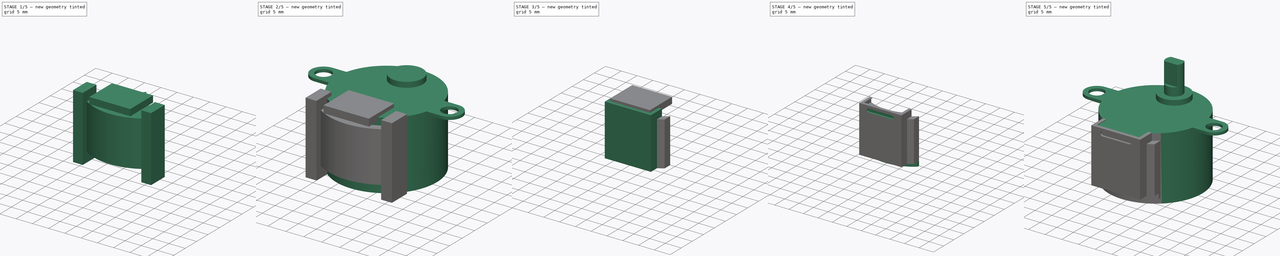
[diagram: build sequence overview — one tinted view per stage of 5, left to right]
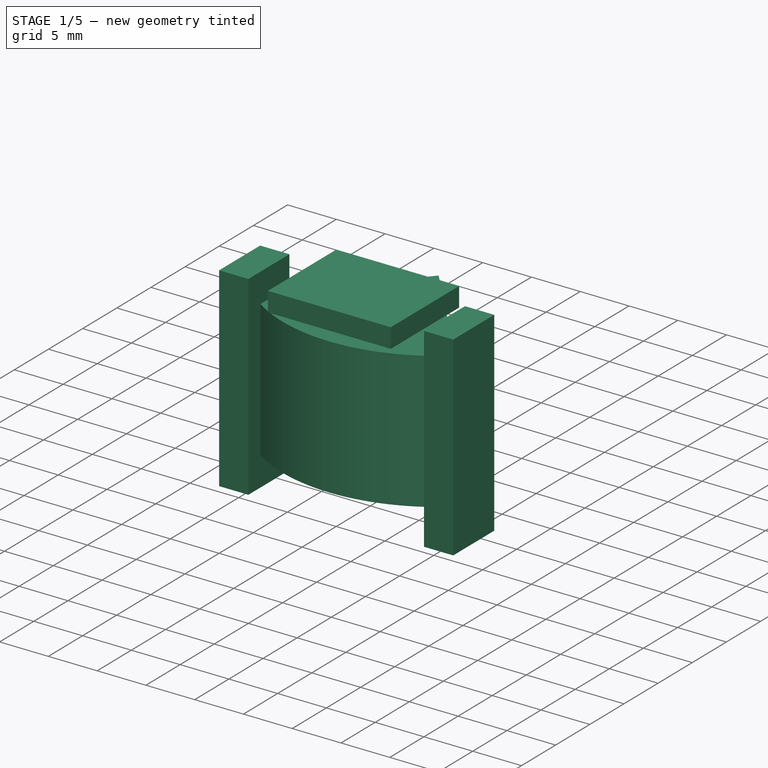
[diagram: stage 1 of 5 — iso view after this stage's code; geometry added in this stage tinted green]
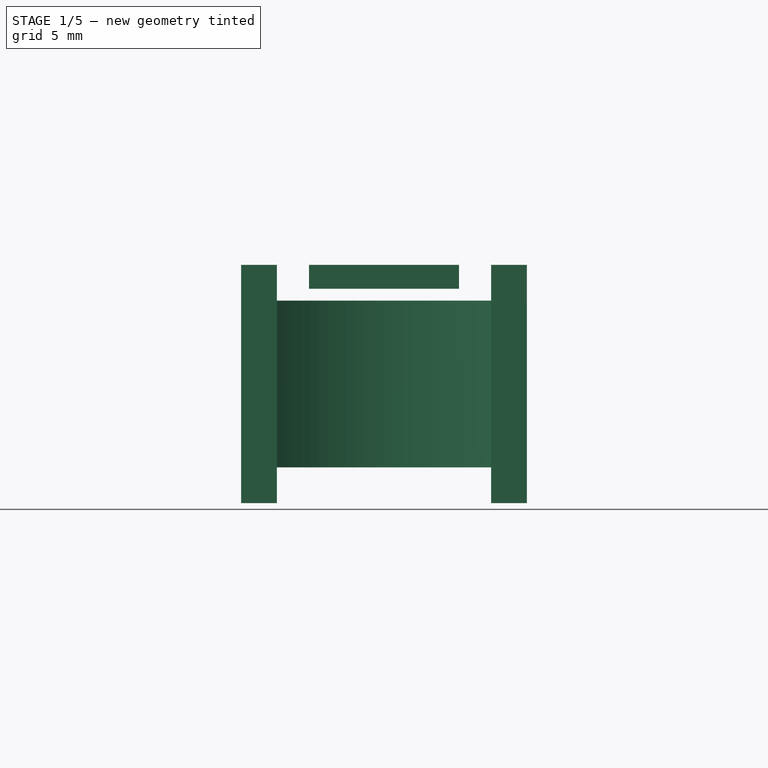
[diagram: stage 1 of 5 — front view after this stage's code; geometry added in this stage tinted green]
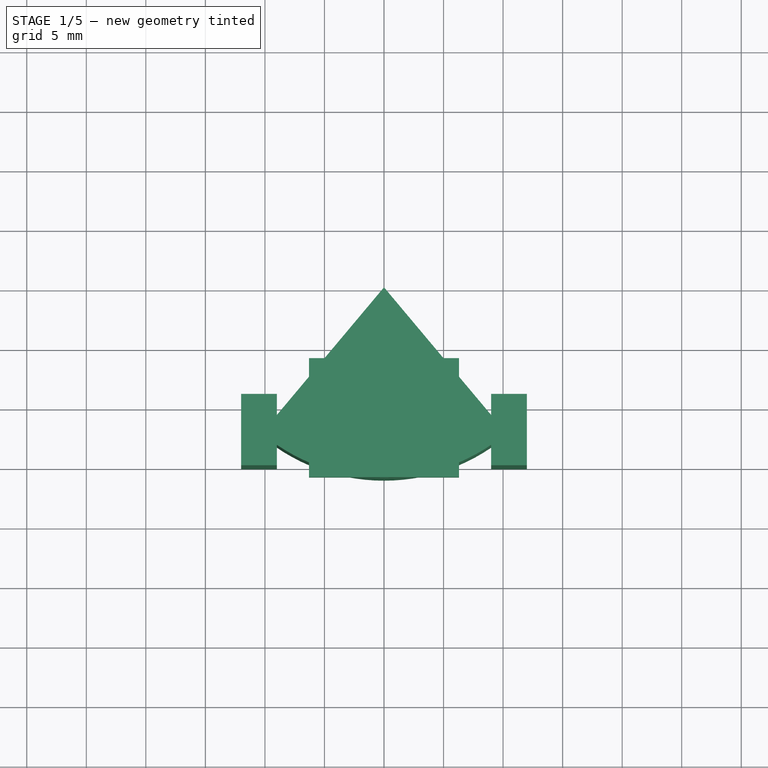
[diagram: stage 1 of 5 — top view after this stage's code; geometry added in this stage tinted green]
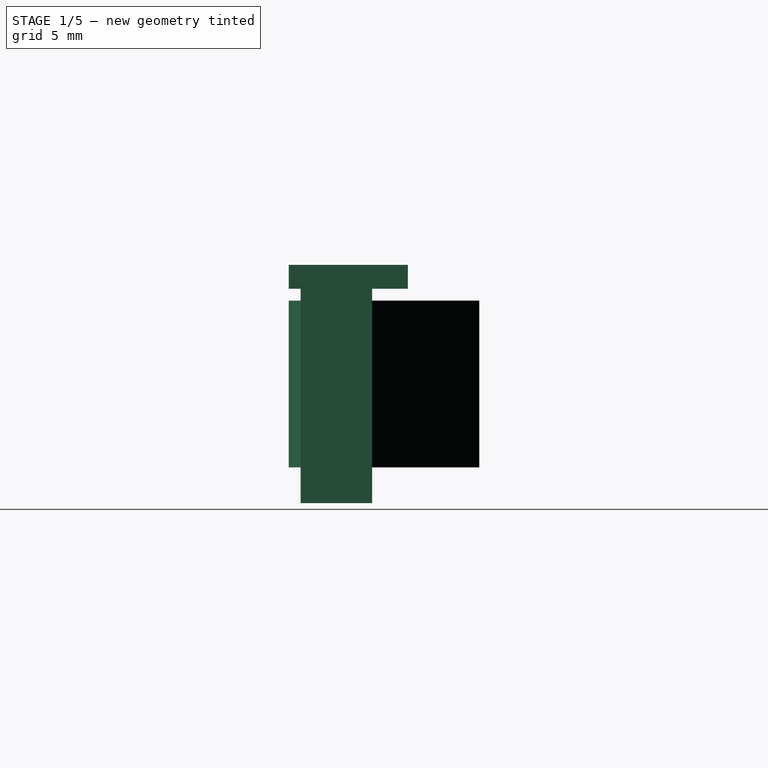
[diagram: stage 1 of 5 — right view after this stage's code; geometry added in this stage tinted green]
FCSTD DOCUMENT  (FreeCAD 0.16R5470 (Git))
Label: 28BYJ-48
License: CreativeCommons Attribution-ShareAlike
LicenseURL: http://creativecommons.org/licenses/by-sa/4.0/
objects: Part::Box×7, Part::Fuse×6, Part::Cut×5, Part::Cylinder×4, Sketcher::SketchObject×3, PartDesign::Pad×2, App::DocumentObjectGroup×2, PartDesign::Pocket×1, Part::Compound×1, Part::Feature×1
note: 33 computed .brp shape members not serialized (recipe doc carries the construction recipe); baked Part::Feature solids carry a one-line shape summary decoded from their .brp

FEATURE [Part::Cylinder] Cylinder003  label="Cilindro001"
  Angle = 80
  Height = 14
  Placement = pos=(0,0,3) rot=(0,0,1;4.01426rad)
  Radius = 16
FEATURE [Part::Box] Box004  label="Cubo004"
  Height = 20
  Length = 3
  Placement = pos=(9,-15,0) rot=(0,0,1;0rad)
  Width = 6
FEATURE [Part::Box] Box005  label="Cubo005"
  Height = 20
  Length = 3
  Placement = pos=(-12,-15,0) rot=(0,0,1;0rad)
  Width = 6
FEATURE [Part::Fuse] Fusion004  label="Arco_plastico"
  Base = -> Box004
  Tool = -> Box005
FEATURE [App::DocumentObjectGroup] Grupo  label="Axis"
  Group = -> [Cut]
FEATURE [Part::Box] Box006  label="Cubo006"
  Height = 2
  Length = 12.6
  Placement = pos=(-6.3,-16,18) rot=(0,0,1;0rad)
  Width = 10
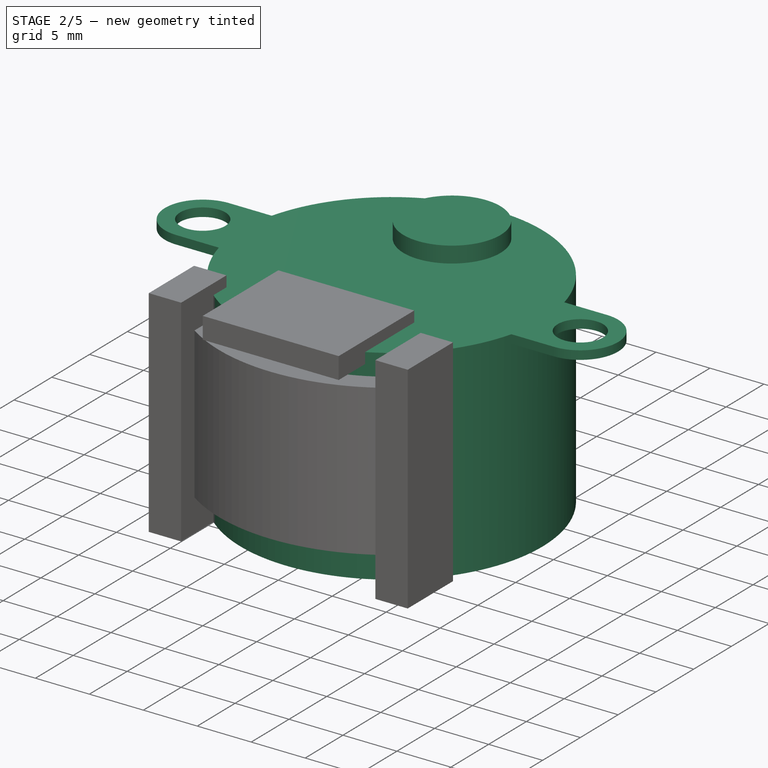
[diagram: stage 2 of 5 — iso view after this stage's code; geometry added in this stage tinted green]
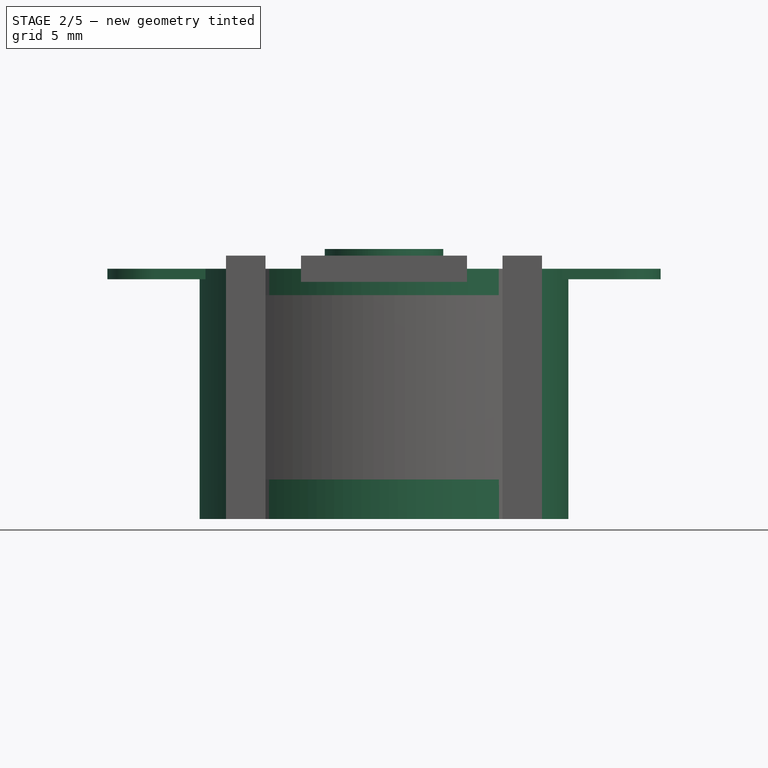
[diagram: stage 2 of 5 — front view after this stage's code; geometry added in this stage tinted green]
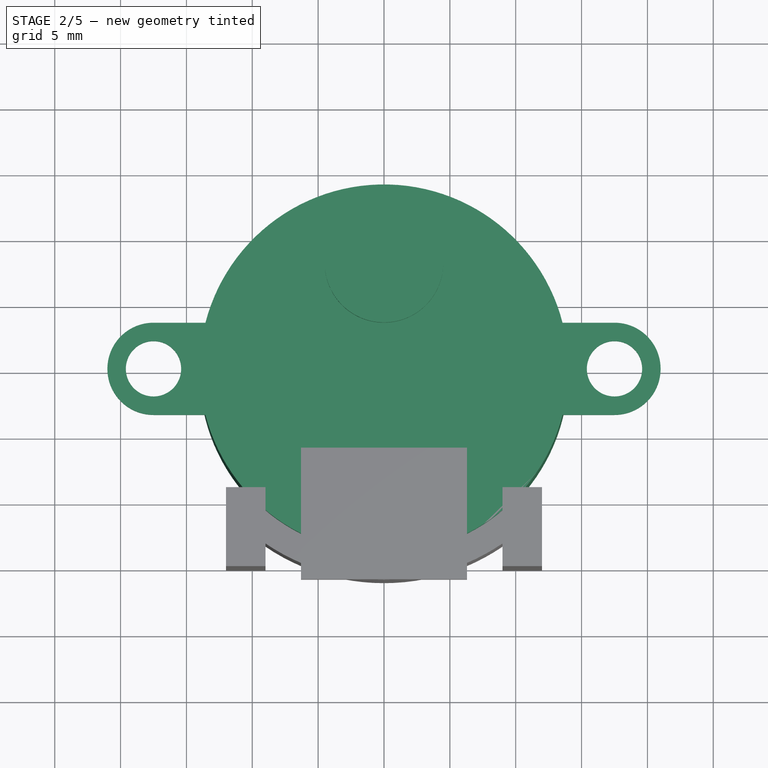
[diagram: stage 2 of 5 — top view after this stage's code; geometry added in this stage tinted green]
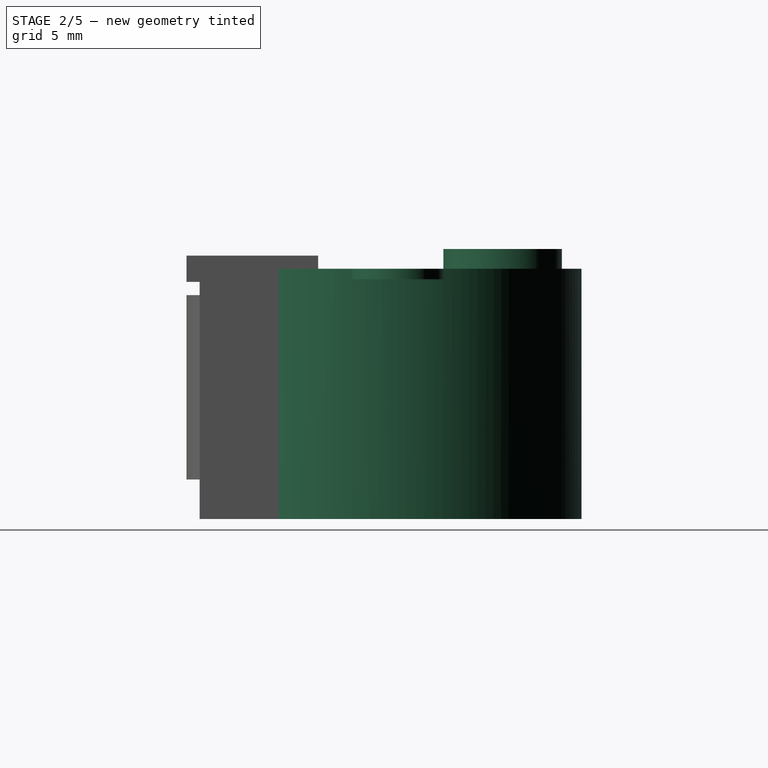
[diagram: stage 2 of 5 — right view after this stage's code; geometry added in this stage tinted green]
FEATURE [Part::Cylinder] Cylinder  label="Principal_body"
  Angle = 360
  Height = 19
  Radius = 14
FEATURE [Sketcher::SketchObject] Sketch
  Placement = pos=(0,0,18.2) rot=(0,0,1;0rad)
  sketch-geometry (6):
    g0: ArcOfCircle CenterX=-17.5 CenterY=0 CenterZ=0 NormalX=0 NormalY=0 NormalZ=1 Radius=3.5 StartAngle=1.5708 EndAngle=4.71239
    g1: ArcOfCircle CenterX=17.5 CenterY=0 CenterZ=0 NormalX=0 NormalY=0 NormalZ=1 Radius=3.5 StartAngle=4.71239 EndAngle=7.85398
    g2: LineSegment StartX=-17.5 StartY=-3.5 StartZ=0 EndX=17.5 EndY=-3.5 EndZ=0
    g3: LineSegment StartX=-17.5 StartY=3.5 StartZ=0 EndX=17.5 EndY=3.5 EndZ=0
    g4: Circle CenterX=-17.5 CenterY=0 CenterZ=0 NormalX=0 NormalY=0 NormalZ=1 Radius=2.1
    g5: Circle CenterX=17.5 CenterY=0 CenterZ=0 NormalX=0 NormalY=0 NormalZ=1 Radius=2.1
  constraints (14):
    c: Tangent(g0,g3) = 1.5708
    c: Tangent(g0,g2) = -1.5708
    c: Tangent(g2,g1) = -1.5708
    c: Tangent(g3,g1) = 1.5708
    c: Horizontal(g2)
    c: Equal(g0,g1)
    c: Symmetric(g0,g1,g-2)
    c: PointOnObject(g0,g-1)
    c: Coincident(g4,g0)
    c: Coincident(g5,g1)
    c: Radius(g4) = 2.1
    c: Radius(g0) = 3.5
    c: Equal(g4,g5)
    c: DistanceX(g0,g1) = 35
FEATURE [PartDesign::Pad] Pad
  Length = 0.8
  Length2 = 100
  Placement = pos=(0,0,18.2) rot=(0,0,1;0rad)
  Sketch = -> Sketch
  Type = 0
FEATURE [Part::Fuse] Fusion
  Base = -> Cylinder
  Tool = -> Pad
FEATURE [Part::Cylinder] Cylinder001  label="Cilindro"
  Angle = 360
  Height = 1.5
  Placement = pos=(0,8,19) rot=(0,0,1;0rad)
  Radius = 4.5
FEATURE [Part::Box] Box002  label="Cubo002"
  Height = 1
  Length = 12.6
  Placement = pos=(-6.3,-16,18) rot=(0,0,1;0rad)
  Width = 10
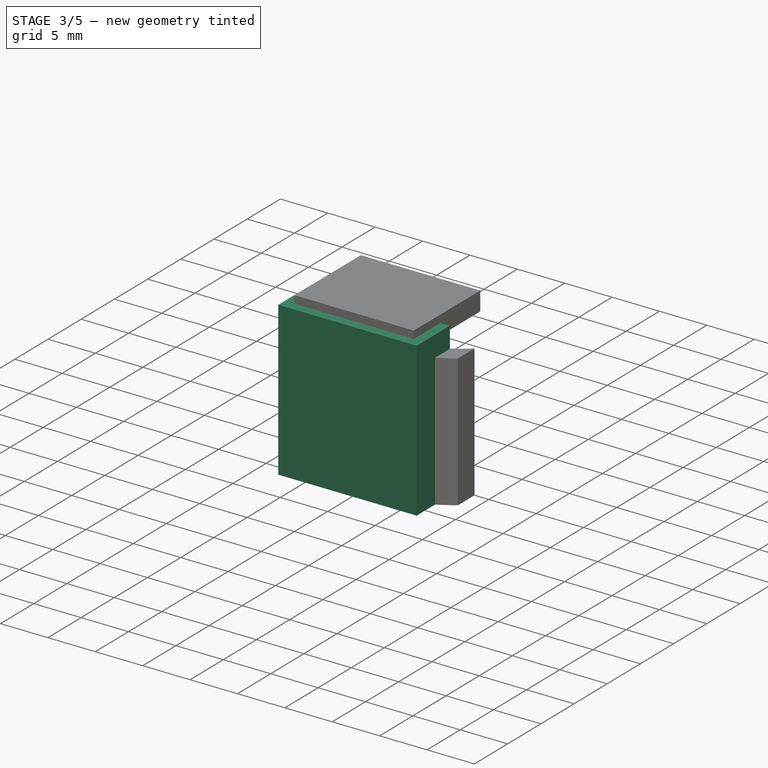
[diagram: stage 3 of 5 — iso view after this stage's code; geometry added in this stage tinted green]
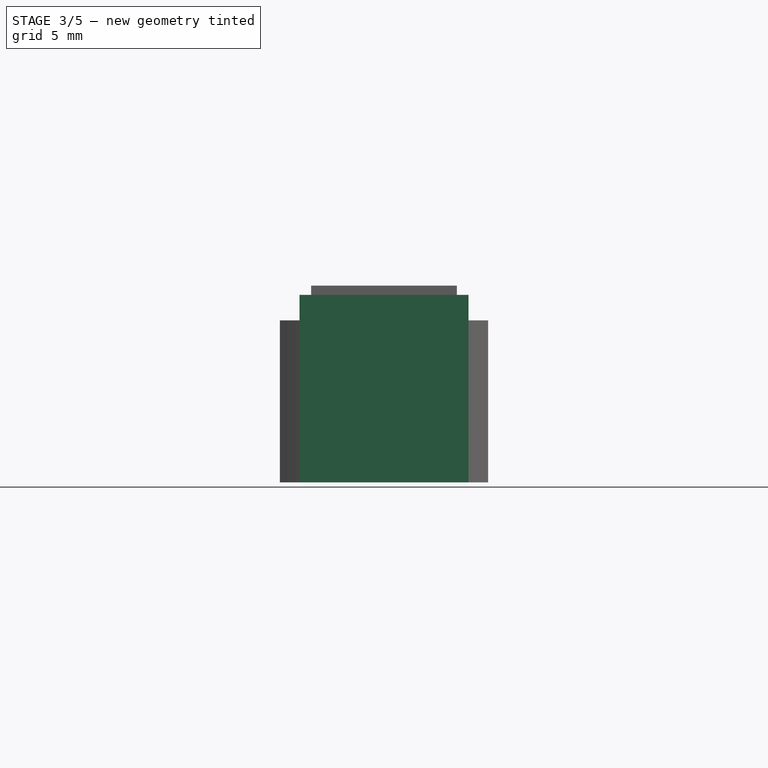
[diagram: stage 3 of 5 — front view after this stage's code; geometry added in this stage tinted green]
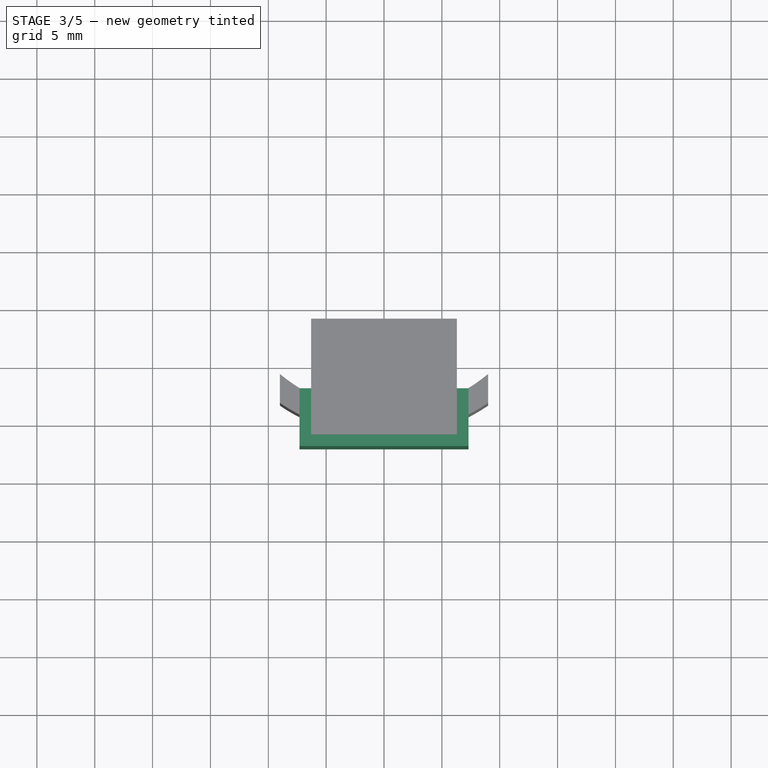
[diagram: stage 3 of 5 — top view after this stage's code; geometry added in this stage tinted green]
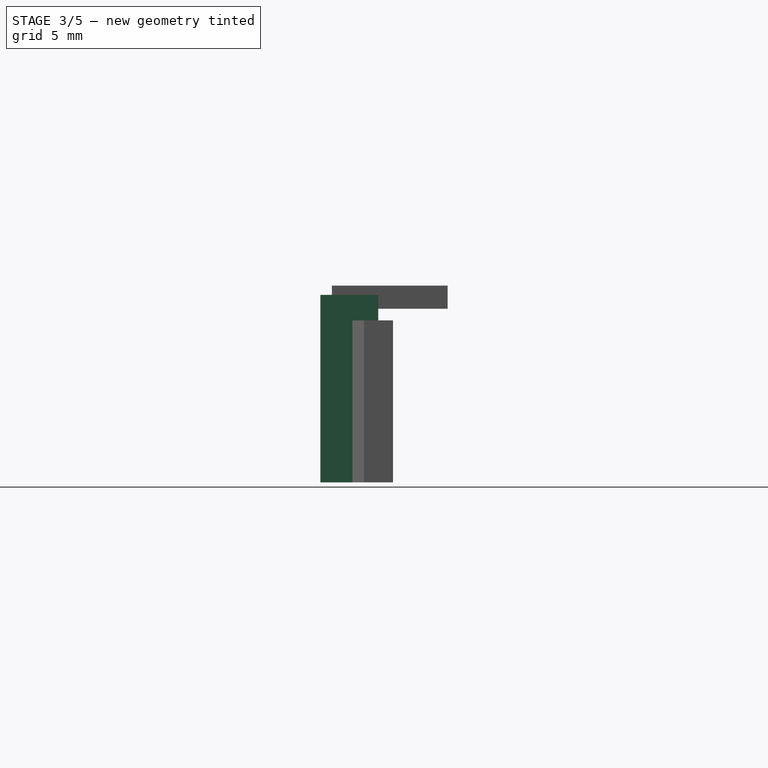
[diagram: stage 3 of 5 — right view after this stage's code; geometry added in this stage tinted green]
FEATURE [Part::Fuse] Fusion002  label="Cilindric_Body"
  Base = -> Fusion
  Tool = -> Cylinder001
FEATURE [Part::Fuse] Fusion003  label="Body"
  Base = -> Fusion002
  Tool = -> Box002
FEATURE [Part::Box] Box003  label="Cubo003"
  Height = 16.2
  Length = 14.6
  Placement = pos=(-7.3,-17,3) rot=(0,0,1;0rad)
  Width = 5
FEATURE [Part::Cut] Cut001  label="Plastic_base"
  Base = -> Box003
  Tool = -> Fusion003
FEATURE [Part::Cut] Cut002
  Base = -> Cylinder003
  Tool = -> Fusion003
FEATURE [Part::Cut] Cut003
  Base = -> Cut002
  Tool = -> Fusion004
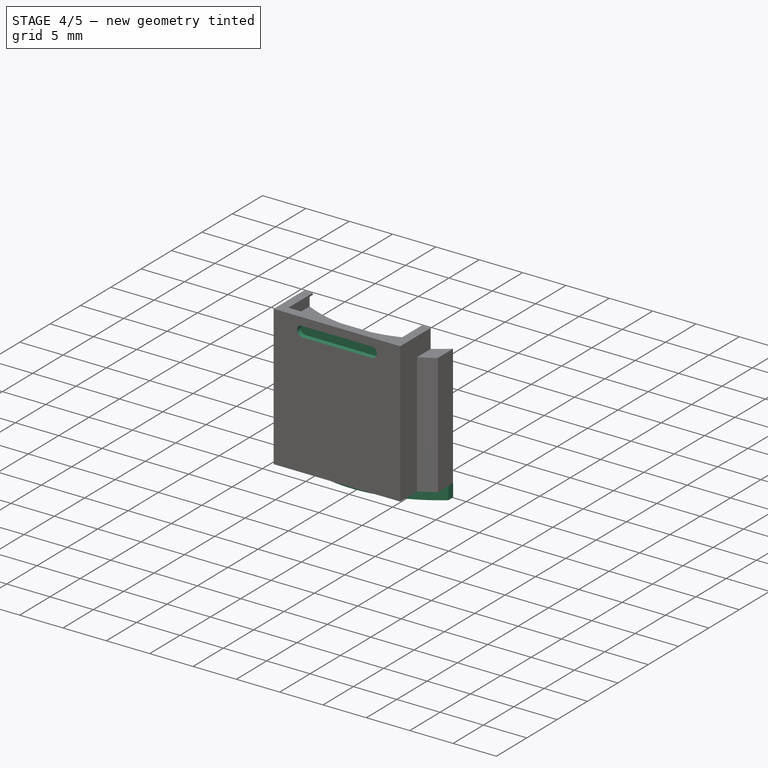
[diagram: stage 4 of 5 — iso view after this stage's code; geometry added in this stage tinted green]
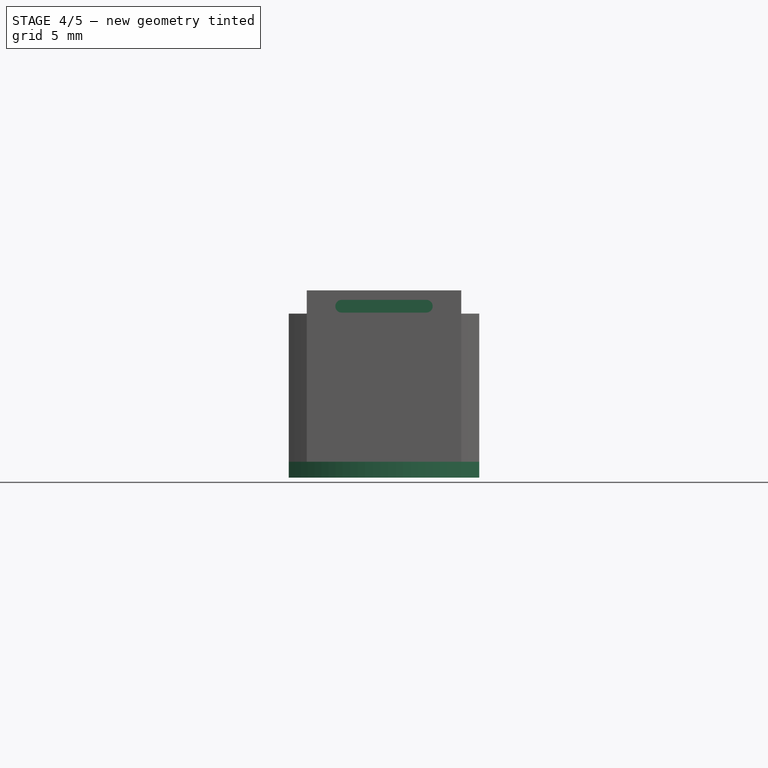
[diagram: stage 4 of 5 — front view after this stage's code; geometry added in this stage tinted green]
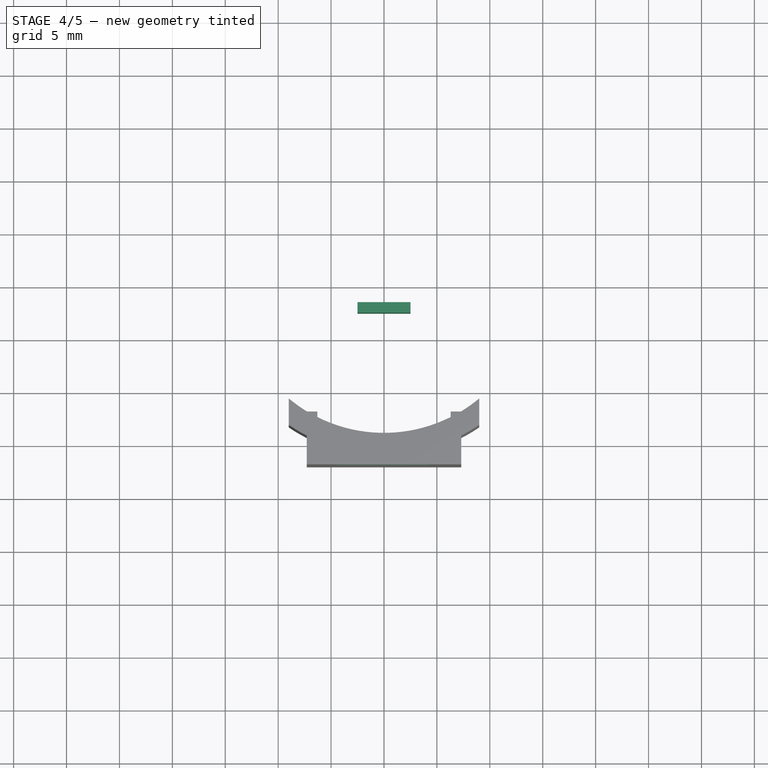
[diagram: stage 4 of 5 — top view after this stage's code; geometry added in this stage tinted green]
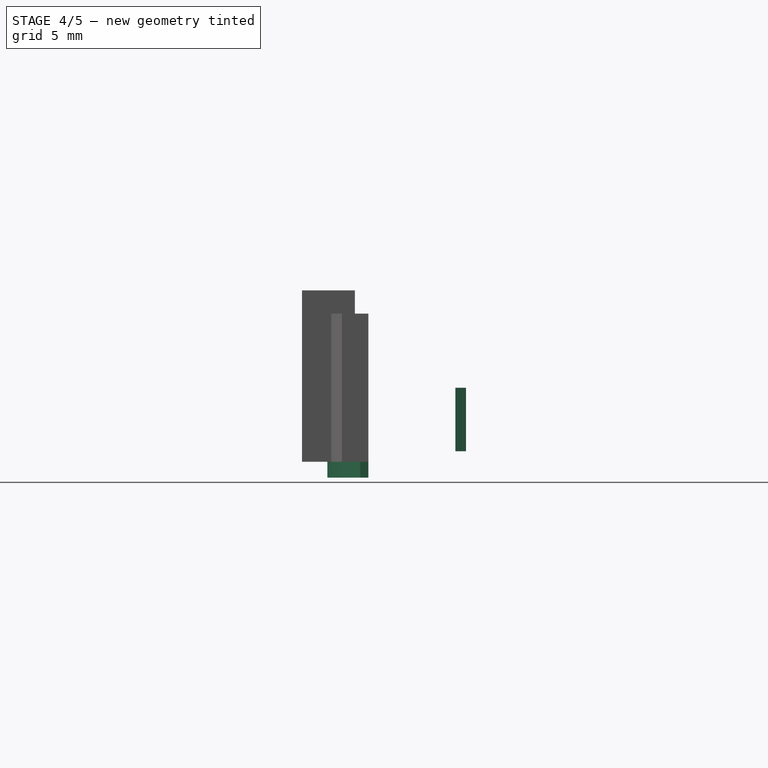
[diagram: stage 4 of 5 — right view after this stage's code; geometry added in this stage tinted green]
FEATURE [Part::Box] Box001  label="Cubo001"
  Height = 6
  Length = 1
  Placement = pos=(2.5,-2.5,4) rot=(0,0,1;1.5708rad)
  Width = 5
FEATURE [Part::Fuse] Fusion005  label="Plastic_base_complete"
  Base = -> Cut001
  Tool = -> Cut003
FEATURE [Part::Cut] Cut004  label="Plastic_base sin vaciado"
  Base = -> Fusion005
  Tool = -> Box006
FEATURE [Sketcher::SketchObject] Sketch001
  ExternalGeometry = -> [Cut004]
  Placement = pos=(0,-17,0) rot=(1,0,0;1.5708rad)
  Support = -> Cut004 [Face5]
  sketch-geometry (4):
    g0: ArcOfCircle CenterX=-4 CenterY=17.7 CenterZ=0 NormalX=0 NormalY=0 NormalZ=1 Radius=0.6 StartAngle=1.5708 EndAngle=4.71239
    g1: ArcOfCircle CenterX=4 CenterY=17.7 CenterZ=0 NormalX=0 NormalY=0 NormalZ=1 Radius=0.6 StartAngle=4.71239 EndAngle=7.85398
    g2: LineSegment StartX=-4 StartY=17.1 StartZ=0 EndX=4 EndY=17.1 EndZ=0
    g3: LineSegment StartX=-4 StartY=18.3 StartZ=0 EndX=4 EndY=18.3 EndZ=0
  constraints (10):
    c: Tangent(g0,g3) = 1.5708
    c: Tangent(g0,g2) = -1.5708
    c: Tangent(g2,g1) = -1.5708
    c: Tangent(g3,g1) = 1.5708
    c: Horizontal(g2)
    c: Equal(g0,g1)
    c: Symmetric(g0,g1,g-2)
    c: DistanceY(g1,g1) = -1.2
    c: DistanceX(g0,g1) = 8
    c: DistanceY(g-3,g0) = -1.5
FEATURE [PartDesign::Pocket] Pocket  label="Plastic_base_vaciado"
  Length = 0.6
  Sketch = -> Sketch001
  Type = 0
FEATURE [Sketcher::SketchObject] Sketch002
  ExternalGeometry = -> [Pocket]
  Placement = pos=(0,0,3) rot=(1,0,0;3.14159rad)
  Support = -> Pocket [Face17]
  sketch-geometry (4):
    g0: ArcOfCircle CenterX=0 CenterY=0 CenterZ=0 NormalX=0 NormalY=0 NormalZ=1 Radius=14.6 StartAngle=0.906585 EndAngle=2.23501
    g1: LineSegment StartX=-9 StartY=11.4961 StartZ=0 EndX=-9 EndY=10.7238 EndZ=0
    g2: LineSegment StartX=9 StartY=11.4961 StartZ=0 EndX=9 EndY=10.7238 EndZ=0
    g3: ArcOfCircle CenterX=0 CenterY=0 CenterZ=0 NormalX=0 NormalY=0 NormalZ=1 Radius=14 StartAngle=0.872574 EndAngle=2.26902
  constraints (13):
    c: PointOnObject(g0,g-2)
    c: Coincident(g0,g-1)
    c: Coincident(g2,g0)
    c: Coincident(g3,g-1)
    c: Coincident(g3,g1)
    c: Coincident(g3,g2)
    c: Radius(g3) = 14
    c: Radius(g0) = 14.6
    c: Coincident(g0,g1)
    c: PointOnObject(g0,g-3)
    c: PointOnObject(g2,g-3)
    c: PointOnObject(g1,g-4)
    c: PointOnObject(g0,g-4)
FEATURE [PartDesign::Pad] Pad001  label="Plastic_base_final"
  Length = 1.5
  Length2 = 100
  Sketch = -> Sketch002
  Type = 0
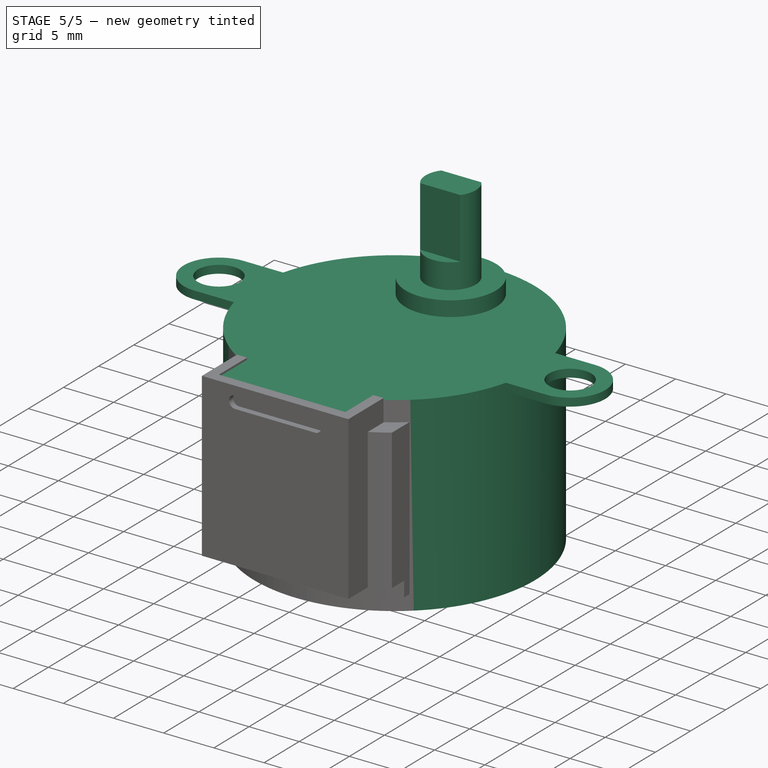
[diagram: stage 5 of 5 — iso view after this stage's code; geometry added in this stage tinted green]
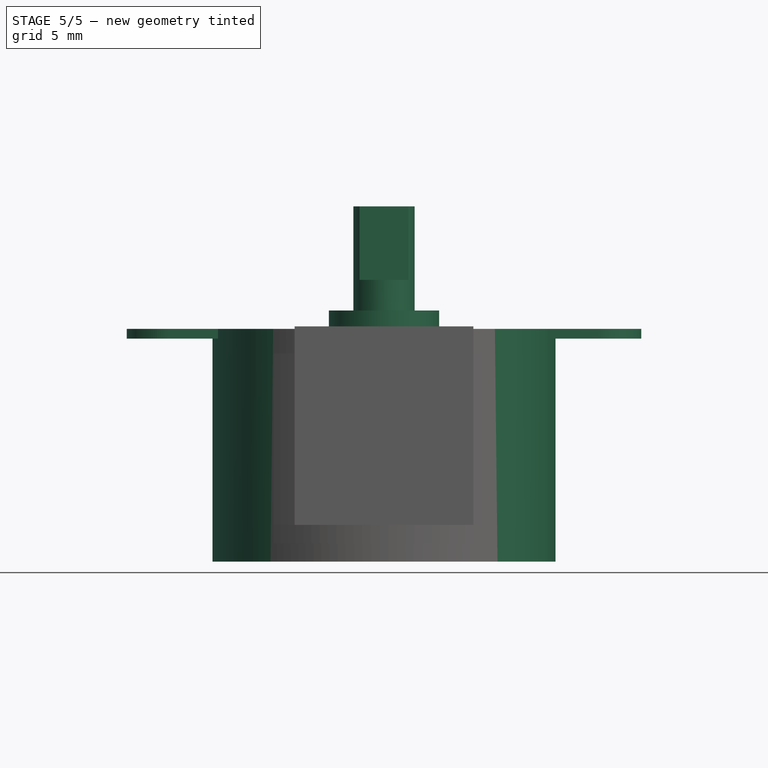
[diagram: stage 5 of 5 — front view after this stage's code; geometry added in this stage tinted green]
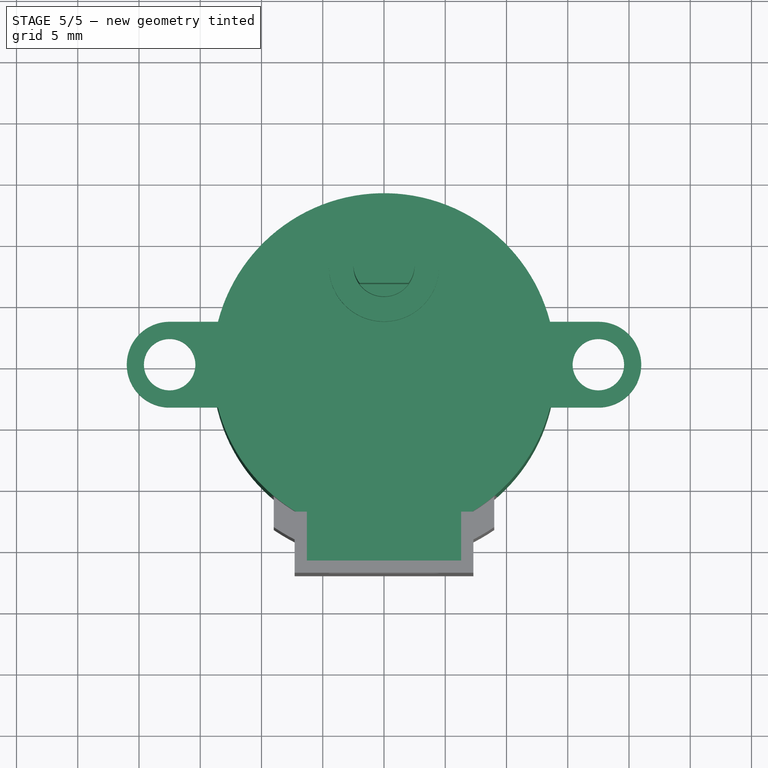
[diagram: stage 5 of 5 — top view after this stage's code; geometry added in this stage tinted green]
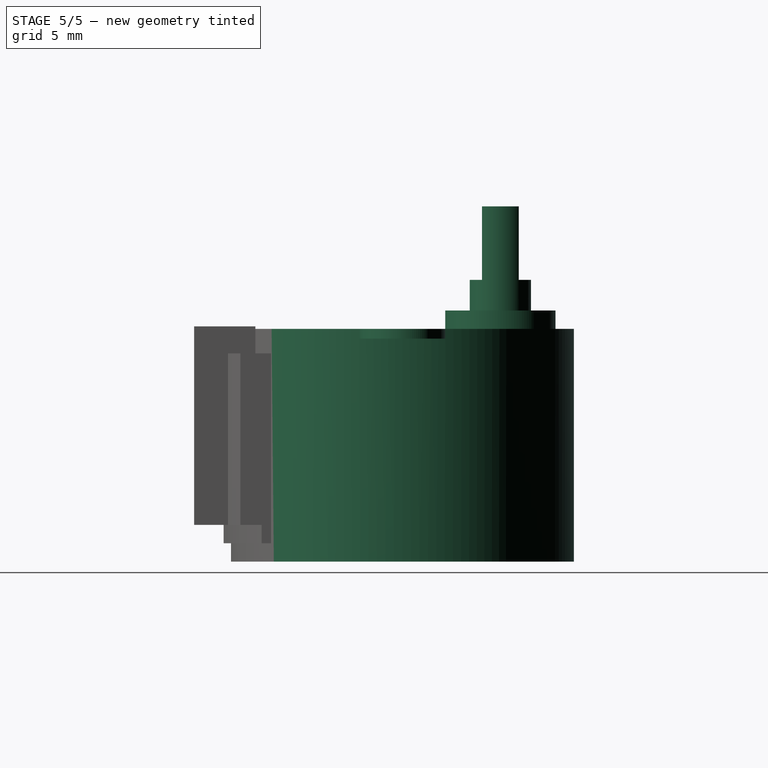
[diagram: stage 5 of 5 — right view after this stage's code; geometry added in this stage tinted green]
FEATURE [Part::Cylinder] Cylinder002  label="Axis1"
  Angle = 360
  Height = 10
  Radius = 2.5
FEATURE [Part::Box] Box  label="Cubo"
  Height = 6
  Length = 1
  Placement = pos=(2.5,1.5,4) rot=(0,0,1;1.5708rad)
  Width = 5
FEATURE [Part::Fuse] Fusion001
  Base = -> Box
  Tool = -> Box001
FEATURE [Part::Cut] Cut  label="Axis final"
  Base = -> Cylinder002
  Placement = pos=(0,8,19) rot=(0,0,1;0rad)
  Tool = -> Fusion001
FEATURE [App::DocumentObjectGroup] Grupo001  label="Plastic base + body"
  Group = -> [Cut004,Pocket,Pad001]
FEATURE [Part::Compound] Compound
  Links = -> [Cut,Fusion003,Pad001]
FEATURE [Part::Feature] Compound001  label="28BYJ-48 final"
  shape: bbox 42 x 31 x 29 mm, 57 faces, 3 solids (baked)
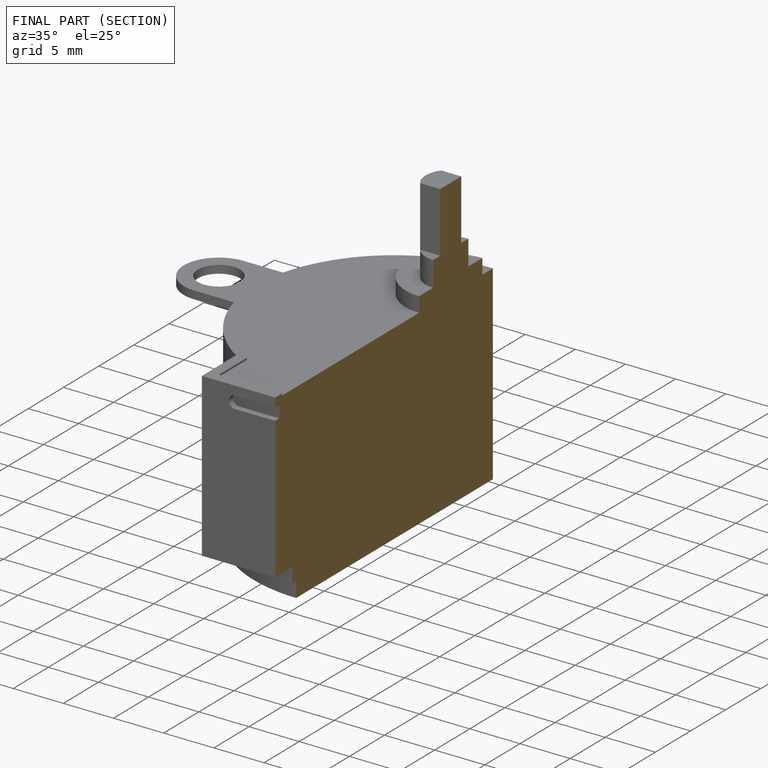
[diagram: finished part — half-section view (interior)]
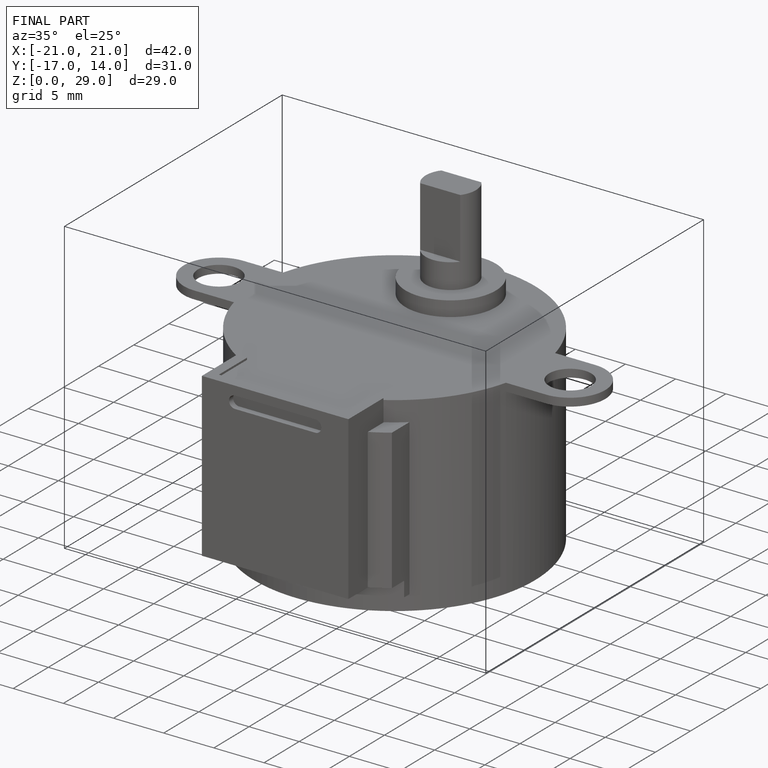
[diagram: finished part — iso view with bounding-box wireframe]
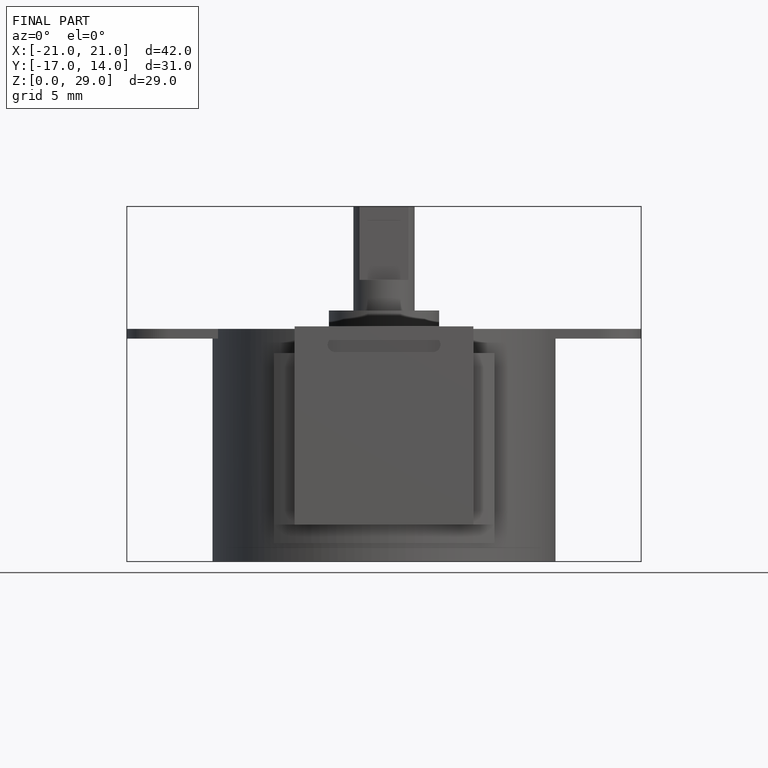
[diagram: finished part — front view with bounding-box wireframe]
